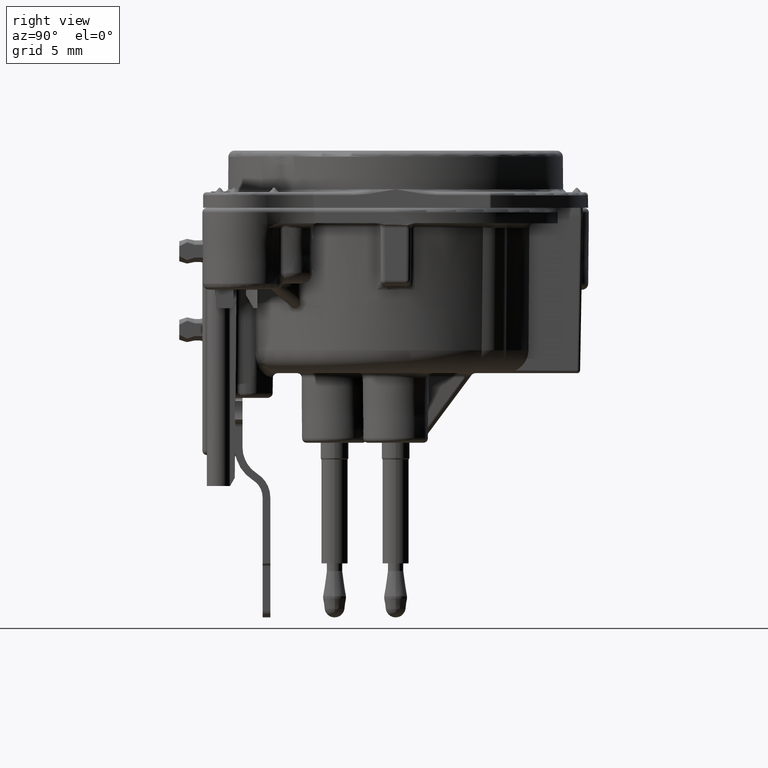
[diagram: clean part render]
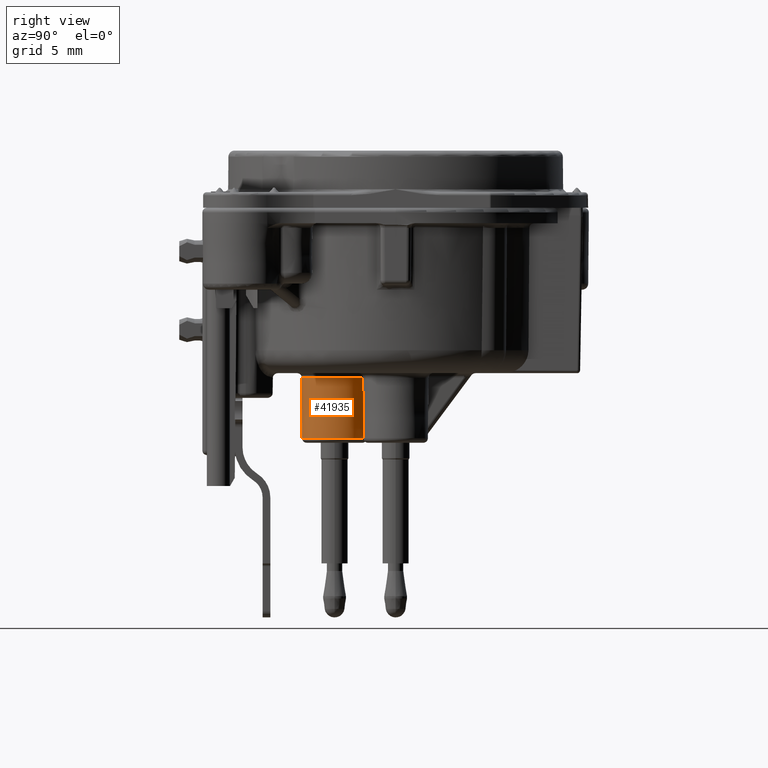
[diagram: same view with one face highlighted and labeled with its STEP entity id]
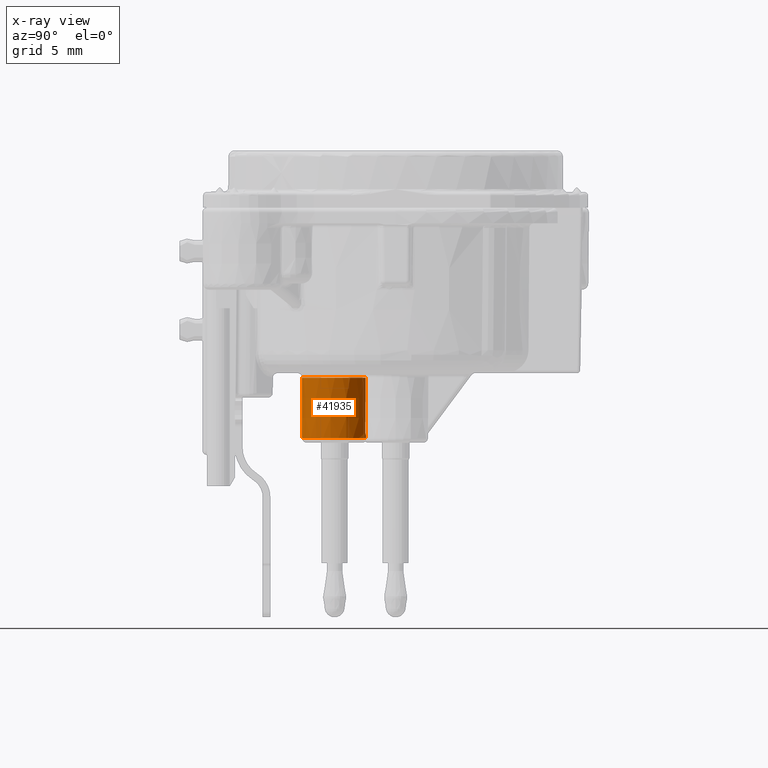
[diagram: x-ray of the same camera — body ghosted, the highlighted face saturated]
A machine part, right view. The second image highlights one B-rep face of the part: STEP entity #41935.
The next image is the same camera in x-ray: the body ghosted, the highlighted face saturated — about 0% of this face is hidden behind the body in this view.
In plain terms, the highlighted conical surface has half-angle 0.5 deg.
Its self-contained STEP definition (entity closure, byte-faithful):
#13821=CARTESIAN_POINT('',(-7.051737381790E-1,-1.965939470457E0,
-1.455261797282E1));
#13833=CARTESIAN_POINT('',(0.E0,-3.95E0,-1.099738213411E1));
#13834=DIRECTION('',(0.E0,0.E0,1.E0));
#13835=DIRECTION('',(-3.433646067445E-1,9.392021863450E-1,0.E0));
#13836=AXIS2_PLACEMENT_3D('',#13833,#13834,#13835);
#13838=CARTESIAN_POINT('',(7.051737128624E-1,-1.965939541820E0,
-1.455261797216E1));
#13839=CARTESIAN_POINT('',(7.083435954392E-1,-1.963397777945E0,
-1.415653421620E1));
#13840=CARTESIAN_POINT('',(7.146795423168E-1,-1.958328372375E0,
-1.336507171889E1));
#13841=CARTESIAN_POINT('',(7.241750493877E-1,-1.950757364194E0,
-1.217999348827E1));
#13842=CARTESIAN_POINT('',(7.304986346632E-1,-1.945734860672E0,
-1.139135088576E1));
#13843=CARTESIAN_POINT('',(7.336588070810E-1,-1.943229518685E0,
-1.099738203935E1));
#13845=DIRECTION('',(8.747327214549E-3,6.846552596292E-3,9.999383025888E-1));
#13846=VECTOR('',#13845,1.006619659473E-1);
#13847=CARTESIAN_POINT('',(5.030554853773E-1,-1.908002453185E0,
-1.485000003946E1));
#13848=LINE('',#13847,#13846);
#13849=DIRECTION('',(-8.739924217746E-3,-6.834717854638E-3,-9.999384482840E-1));
#13850=VECTOR('',#13849,5.262116011144E-2);
#13851=CARTESIAN_POINT('',(5.030554853773E-1,-1.908002453185E0,
-1.485000003946E1));
#13852=LINE('',#13851,#13850);
#13853=CARTESIAN_POINT('',(0.E0,-3.95E0,-1.490261797208E1));
#13854=DIRECTION('',(0.E0,0.E0,1.E0));
#13855=DIRECTION('',(-2.390354644459E-1,9.710108376003E-1,0.E0));
#13856=AXIS2_PLACEMENT_3D('',#13853,#13854,#13855);
#13858=DIRECTION('',(8.733733109186E-3,-6.836249800888E-3,-9.999384919057E-1));
#13859=VECTOR('',#13858,5.262119728017E-2);
#13860=CARTESIAN_POINT('',(-5.030533217362E-1,-1.908001919808E0,-1.485E1));
#13861=LINE('',#13860,#13859);
#13862=DIRECTION('',(8.741134340865E-3,-6.848088614276E-3,-9.999383462258E-1));
#13863=VECTOR('',#13862,1.006597983625E-1);
#13864=CARTESIAN_POINT('',(-5.039332025564E-1,-1.907312592589E0,
-1.474934640769E1));
#13865=LINE('',#13864,#13863);
#13866=CARTESIAN_POINT('',(-7.336588070724E-1,-1.943229518681E0,
-1.099738203935E1));
#13867=CARTESIAN_POINT('',(-7.304986346728E-1,-1.945734860653E0,
-1.139135088348E1));
#13868=CARTESIAN_POINT('',(-7.241750528107E-1,-1.950757354647E0,
-1.217999348294E1));
#13869=CARTESIAN_POINT('',(-7.146795306231E-1,-1.958328405580E0,
-1.336507170336E1));
#13870=CARTESIAN_POINT('',(-7.083436208084E-1,-1.963397706540E0,
-1.415653421029E1));
#13871=CARTESIAN_POINT('',(-7.051737381790E-1,-1.965939470457E0,
-1.455261797282E1));
#13878=CARTESIAN_POINT('',(7.051737128624E-1,-1.965939541820E0,
-1.455261797216E1));
#14345=CARTESIAN_POINT('',(-7.051737381790E-1,-1.965939470457E0,
-1.455261797282E1));
#14346=CARTESIAN_POINT('',(-6.895503416465E-1,-1.960554094974E0,
-1.457029153409E1));
#14347=CARTESIAN_POINT('',(-6.582457205647E-1,-1.950161056067E0,
-1.460547695766E1));
#14348=CARTESIAN_POINT('',(-6.101925491235E-1,-1.935432755930E0,
-1.465650013322E1));
#14349=CARTESIAN_POINT('',(-5.593949974117E-1,-1.921152344396E0,
-1.470522648731E1));
#14350=CARTESIAN_POINT('',(-5.229682842884E-1,-1.911881622572E0,
-1.473522333765E1));
#14351=CARTESIAN_POINT('',(-5.039332025564E-1,-1.907312592589E0,
-1.474934640769E1));
#14608=CARTESIAN_POINT('',(5.039360085315E-1,-1.907313265740E0,
-1.474934428410E1));
#14609=CARTESIAN_POINT('',(5.298538067444E-1,-1.913534403974E0,
-1.473011435770E1));
#14610=CARTESIAN_POINT('',(5.783667524934E-1,-1.926152977406E0,
-1.468862632133E1));
#14611=CARTESIAN_POINT('',(6.441375780310E-1,-1.945559150175E0,
-1.462131501724E1));
#14612=CARTESIAN_POINT('',(6.850112508719E-1,-1.958989468611E0,
-1.457542797289E1));
#14613=CARTESIAN_POINT('',(7.051737128624E-1,-1.965939541820E0,
-1.455261797216E1));
#20086=CARTESIAN_POINT('',(5.025944997943E-1,-1.908366495042E0,
-1.490261794338E1));
#20087=CARTESIAN_POINT('',(-5.025926615422E-1,-1.908366042515E0,
-1.490261794338E1));
#20088=VERTEX_POINT('',#20086);
#20089=VERTEX_POINT('',#20087);
#20119=VERTEX_POINT('',#13821);
#20146=VERTEX_POINT('',#13878);
#20166=CARTESIAN_POINT('',(5.030554853773E-1,-1.908002453185E0,
-1.485000003946E1));
#20167=VERTEX_POINT('',#20166);
#20168=CARTESIAN_POINT('',(-5.030533217362E-1,-1.908001919808E0,-1.485E1));
#20169=VERTEX_POINT('',#20168);
#20174=CARTESIAN_POINT('',(-5.039332025564E-1,-1.907312592589E0,
-1.474934640769E1));
#20175=VERTEX_POINT('',#20174);
#20176=CARTESIAN_POINT('',(5.039360085315E-1,-1.907313265740E0,
-1.474934428410E1));
#20177=VERTEX_POINT('',#20176);
#20208=CARTESIAN_POINT('',(-7.336588015315E-1,-1.943229515684E0,
-1.099738193513E1));
#20209=VERTEX_POINT('',#20208);
#20210=CARTESIAN_POINT('',(7.336588082082E-1,-1.943229519982E0,
-1.099738213411E1));
#20211=VERTEX_POINT('',#20210);
#41910=CARTESIAN_POINT('',(0.E0,-3.95E0,-1.295000003547E1));
#41911=DIRECTION('',(0.E0,0.E0,1.E0));
#41912=DIRECTION('',(1.E0,0.E0,0.E0));
#41913=AXIS2_PLACEMENT_3D('',#41910,#41911,#41912);
#41914=CONICAL_SURFACE('',#41913,2.119635452220E0,5.E-1);
#41915=ORIENTED_EDGE('',*,*,#41901,.T.);
#41917=ORIENTED_EDGE('',*,*,#41916,.F.);
#41919=ORIENTED_EDGE('',*,*,#41918,.F.);
#41921=ORIENTED_EDGE('',*,*,#41920,.F.);
#41923=ORIENTED_EDGE('',*,*,#41922,.T.);
#41925=ORIENTED_EDGE('',*,*,#41924,.F.);
#41927=ORIENTED_EDGE('',*,*,#41926,.F.);
#41929=ORIENTED_EDGE('',*,*,#41928,.F.);
#41931=ORIENTED_EDGE('',*,*,#41930,.F.);
#41932=ORIENTED_EDGE('',*,*,#41876,.F.);
#41933=EDGE_LOOP('',(#41915,#41917,#41919,#41921,#41923,#41925,#41927,#41929,
#41931,#41932));
#41934=FACE_OUTER_BOUND('',#41933,.F.);
#41935=ADVANCED_FACE('',(#41934),#41914,.T.);
#13837=CIRCLE('',#13836,2.136675690491E0);
#13844=B_SPLINE_CURVE_WITH_KNOTS('',3,(#13838,#13839,#13840,#13841,#13842,
#13843),.UNSPECIFIED.,.F.,.F.,(4,1,1,4),(0.E0,3.333333333333E-1,
6.666666666667E-1,1.E0),.UNSPECIFIED.);
#13857=CIRCLE('',#13856,2.102595213641E0);
#13872=B_SPLINE_CURVE_WITH_KNOTS('',3,(#13866,#13867,#13868,#13869,#13870,
#13871),.UNSPECIFIED.,.F.,.F.,(4,1,1,4),(0.E0,3.333333333333E-1,
6.666666666667E-1,1.E0),.UNSPECIFIED.);
#14352=B_SPLINE_CURVE_WITH_KNOTS('',3,(#14345,#14346,#14347,#14348,#14349,
#14350,#14351),.UNSPECIFIED.,.F.,.F.,(4,1,1,1,4),(0.E0,2.5E-1,5.E-1,7.5E-1,
1.E0),.UNSPECIFIED.);
#14614=B_SPLINE_CURVE_WITH_KNOTS('',3,(#14608,#14609,#14610,#14611,#14612,
#14613),.UNSPECIFIED.,.F.,.F.,(4,1,1,4),(0.E0,3.333333333333E-1,
6.666666666667E-1,1.E0),.UNSPECIFIED.);
#41876=EDGE_CURVE('',#20209,#20119,#13872,.T.);
#41901=EDGE_CURVE('',#20209,#20211,#13837,.T.);
#41916=EDGE_CURVE('',#20146,#20211,#13844,.T.);
#41918=EDGE_CURVE('',#20177,#20146,#14614,.T.);
#41920=EDGE_CURVE('',#20167,#20177,#13848,.T.);
#41922=EDGE_CURVE('',#20167,#20088,#13852,.T.);
#41924=EDGE_CURVE('',#20089,#20088,#13857,.T.);
#41926=EDGE_CURVE('',#20169,#20089,#13861,.T.);
#41928=EDGE_CURVE('',#20175,#20169,#13865,.T.);
#41930=EDGE_CURVE('',#20119,#20175,#14352,.T.);